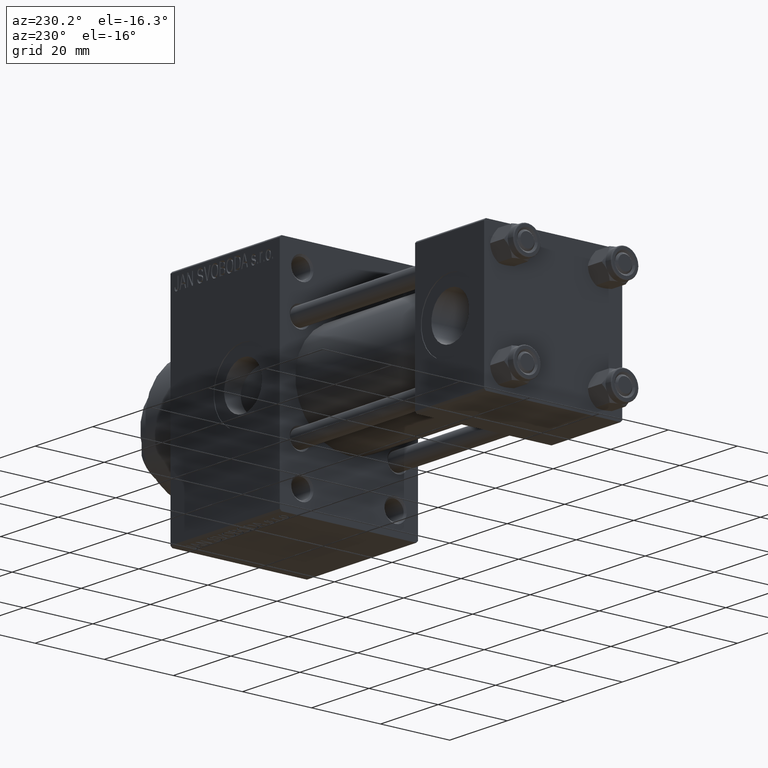
[diagram: clean part render]
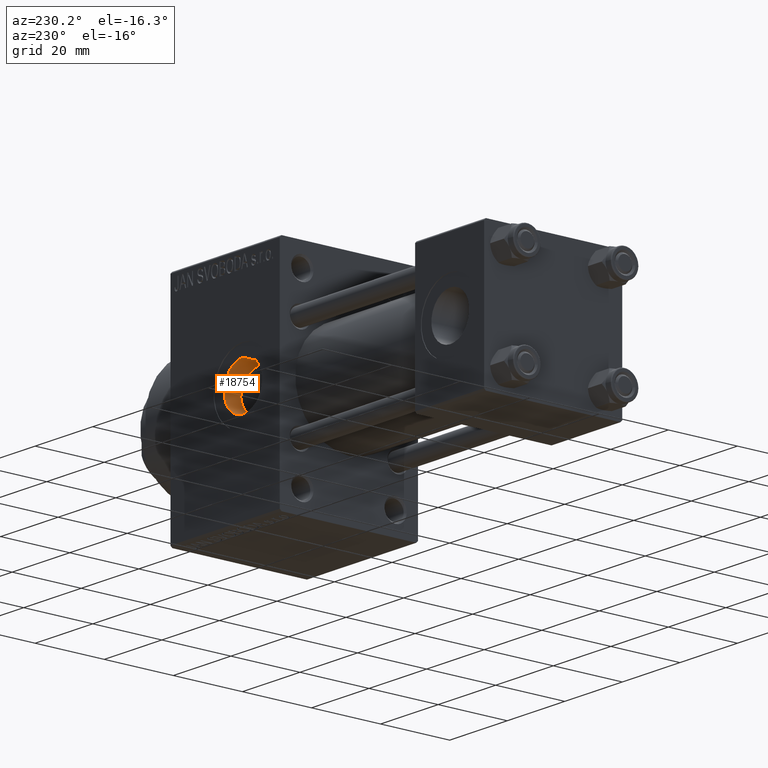
[diagram: same view with one face highlighted and labeled with its STEP entity id]
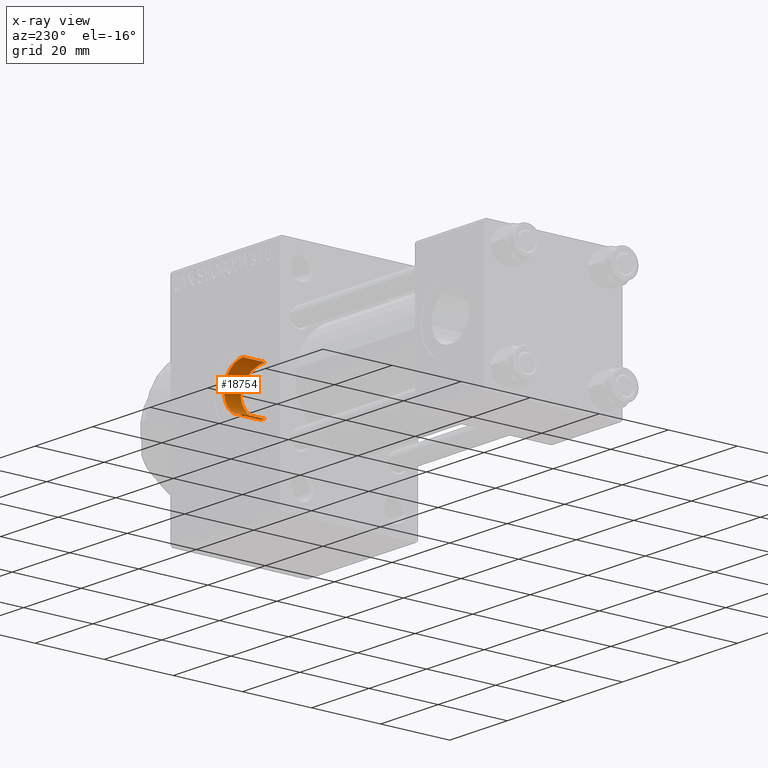
[diagram: x-ray of the same camera — body ghosted, the highlighted face saturated]
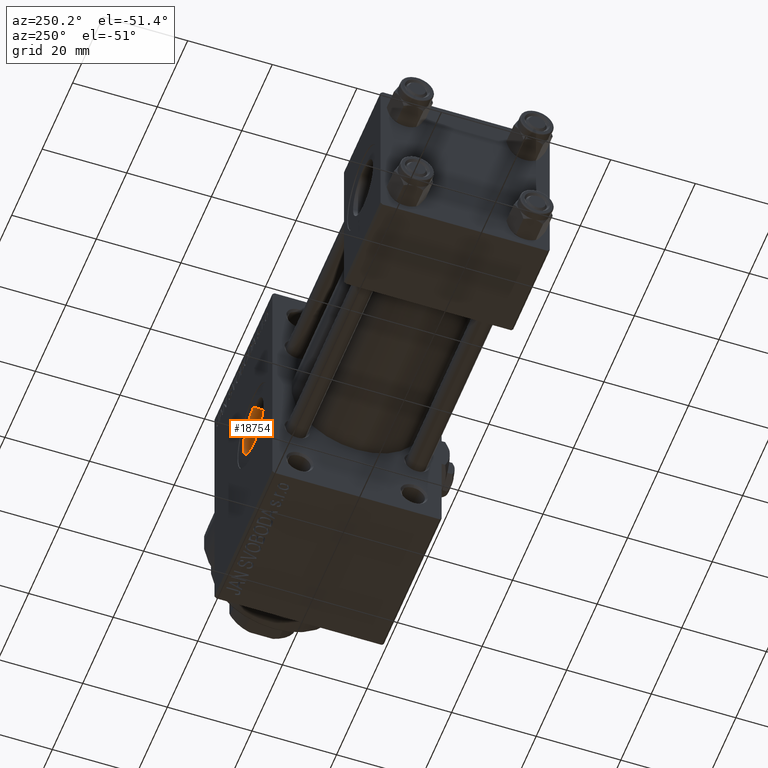
[diagram: same view with one face highlighted and labeled with its STEP entity id]
A machine part, auxiliary view. The second image highlights one B-rep face of the part: STEP entity #18754.
The next image is the same camera in x-ray: the body ghosted, the highlighted face saturated — about 0% of this face is hidden behind the body in this view.
A second angle (auxiliary view) of the same face is appended — the face is thin or edge-on in the first view.
In plain terms, the highlighted cylindrical surface (edge-blend (fillet) strip) has radius 6.58 mm, axis along (0, 1, 0).
Its self-contained STEP definition (entity closure, byte-faithful):
#14 = CARTESIAN_POINT ( 'NONE',  ( 84.00000000000000000, 13.47974777212020570, -6.580000000001541061 ) ) ;
#210 = ORIENTED_EDGE ( 'NONE', *, *, #13564, .T. ) ;
#1333 = VERTEX_POINT ( 'NONE', #23386 ) ;
#2153 = LINE ( 'NONE', #6334, #25963 ) ;
#2173 = EDGE_CURVE ( 'NONE', #26191, #11649, #6833, .T. ) ;
#2474 = DIRECTION ( 'NONE',  ( 0.000000000000000000, 0.000000000000000000, 1.000000000000000000 ) ) ;
#2483 = CARTESIAN_POINT ( 'NONE',  ( 86.14192174141415137, 13.64329079840288728, 6.236468868898946916 ) ) ;
#2724 = CARTESIAN_POINT ( 'NONE',  ( 90.56927314805744800, 14.99528481447028838, -0.4348723903636226851 ) ) ;
#2970 = CARTESIAN_POINT ( 'NONE',  ( 88.94767122397709613, 14.35626376569894980, -4.358576204425606448 ) ) ;
#3469 = CARTESIAN_POINT ( 'NONE',  ( 86.73052902550121246, 13.75215651404846895, -5.990516584932040978 ) ) ;
#3657 = CARTESIAN_POINT ( 'NONE',  ( 84.00000000000000000, -18.61105048083429736, -6.580000000001541061 ) ) ;
#3714 = CARTESIAN_POINT ( 'NONE',  ( 90.23769844280084840, 14.85224310456066199, -2.139178080577716301 ) ) ;
#5939 = CARTESIAN_POINT ( 'NONE',  ( 88.50269527074252096, 14.21118671985590609, 4.802809199701820297 ) ) ;
#6181 = CARTESIAN_POINT ( 'NONE',  ( 89.90496100315004924, 14.71561861235558055, 2.934527236680509965 ) ) ;
#6334 = CARTESIAN_POINT ( 'NONE',  ( 84.00000000000000000, -18.61105048083429736, 6.580000000001541061 ) ) ;
#6833 = CIRCLE ( 'NONE', #46175, 6.580000000001541061 ) ;
#8341 = CARTESIAN_POINT ( 'NONE',  ( 84.00000000000000000, 19.80000000000000071, 6.580000000001541061 ) ) ;
#9523 = DIRECTION ( 'NONE',  ( 0.000000000000000000, 0.000000000000000000, 1.000000000000000000 ) ) ;
#9631 = CARTESIAN_POINT ( 'NONE',  ( 84.87316574373073763, 13.50139811867472694, 6.536143893247988501 ) ) ;
#9868 = CARTESIAN_POINT ( 'NONE',  ( 89.22411835450492390, 14.45495742940372175, 4.023617649563258070 ) ) ;
#10354 = CARTESIAN_POINT ( 'NONE',  ( 90.52575784058851127, 14.97627231213753163, -0.8711763860932838499 ) ) ;
#11307 = EDGE_CURVE ( 'NONE', #17361, #11649, #18179, .T. ) ;
#11340 = CARTESIAN_POINT ( 'NONE',  ( 88.34654763100903097, 14.16034374859521350, -4.958241700615885428 ) ) ;
#11649 = VERTEX_POINT ( 'NONE', #37860 ) ;
#11719 = B_SPLINE_CURVE_WITH_KNOTS ( 'NONE', 3,
 ( #21436, #14043, #9631, #28807, #2483, #40140, #24663, #39894, #24898, #39652, #5939, #28574, #9868, #44078, #6181, #25378, #47538, #17502, #43833, #36437, #40381, #32500, #2724, #10354, #25612, #26123, #3714, #33229, #32984, #45064, #2970, #11340, #48028, #26365, #21929, #48510, #3469, #48263, #17993, #36933, #41360, #14 ),
 .UNSPECIFIED., .F., .F.,
 ( 4, 2, 2, 2, 2, 2, 2, 2, 2, 2, 2, 2, 2, 2, 2, 2, 2, 2, 2, 2, 4 ),
 ( 1.422579022190208801E-17, 0.001302447285417714182, 0.002604894570835414053, 0.003907341856253113491, 0.004558565498961946946, 0.005209789141670780402, 0.006512236427088448180, 0.007814683712506115959, 0.008465907355214958088, 0.009117130997923801952, 0.01041957828334148621, 0.01107080192605032834, 0.01172202556875917047, 0.01302447285417686340, 0.01432692013959455633, 0.01562936742501224580, 0.01693181471042993699, 0.01758303835313878086, 0.01823426199584762819, 0.01953670928126531939, 0.02083915656668300712 ),
 .UNSPECIFIED. ) ;
#12969 = CARTESIAN_POINT ( 'NONE',  ( 84.00000000000000000, -18.61105048083429736, 0.000000000000000000 ) ) ;
#13564 = EDGE_CURVE ( 'NONE', #1333, #26191, #2153, .T. ) ;
#14043 = CARTESIAN_POINT ( 'NONE',  ( 84.44091709312753835, 13.47974777212020925, 6.580000000001541949 ) ) ;
#16434 = FACE_OUTER_BOUND ( 'NONE', #37588, .T. ) ;
#17361 = VERTEX_POINT ( 'NONE', #28795 ) ;
#17502 = CARTESIAN_POINT ( 'NONE',  ( 90.35400523561561670, 14.90213545262838934, 1.723442878131194567 ) ) ;
#17993 = CARTESIAN_POINT ( 'NONE',  ( 85.72738229337633697, 13.58322368116233925, -6.364371117436304459 ) ) ;
#18179 = LINE ( 'NONE', #3657, #21957 ) ;
#18754 = ADVANCED_FACE ( 'NONE', ( #16434 ), #39767, .F. ) ;
#20622 = DIRECTION ( 'NONE',  ( -0.000000000000000000, 1.000000000000000000, -0.000000000000000000 ) ) ;
#20935 = DIRECTION ( 'NONE',  ( 0.000000000000000000, 1.000000000000000000, 0.000000000000000000 ) ) ;
#21436 = CARTESIAN_POINT ( 'NONE',  ( 84.00000000000001421, 13.47974777212020747, 6.580000000001541061 ) ) ;
#21929 = CARTESIAN_POINT ( 'NONE',  ( 87.30108931628336677, 13.87684958374441280, -5.696061878518563049 ) ) ;
#21957 = VECTOR ( 'NONE', #38095, 1000.000000000000000 ) ;
#23386 = CARTESIAN_POINT ( 'NONE',  ( 84.00000000000001421, 13.47974777212020747, 6.580000000001541061 ) ) ;
#24359 = ORIENTED_EDGE ( 'NONE', *, *, #2173, .T. ) ;
#24630 = AXIS2_PLACEMENT_3D ( 'NONE', #12969, #43244, #9523 ) ;
#24663 = CARTESIAN_POINT ( 'NONE',  ( 87.31096684123954788, 13.87618552960360319, 5.702370364628353450 ) ) ;
#24898 = CARTESIAN_POINT ( 'NONE',  ( 88.01682385340173198, 14.06462955860938990, 5.216021925338526266 ) ) ;
#25378 = CARTESIAN_POINT ( 'NONE',  ( 90.15299919069009604, 14.81746657544780987, 2.341560291187981591 ) ) ;
#25612 = CARTESIAN_POINT ( 'NONE',  ( 90.49330976722114883, 14.96212495205842785, -1.086408634742738633 ) ) ;
#25963 = VECTOR ( 'NONE', #20622, 1000.000000000000000 ) ;
#26123 = CARTESIAN_POINT ( 'NONE',  ( 90.36499013257748913, 14.90673487989735158, -1.723694413480210130 ) ) ;
#26191 = VERTEX_POINT ( 'NONE', #8341 ) ;
#26365 = CARTESIAN_POINT ( 'NONE',  ( 87.48650847152742926, 13.92228281461338746, -5.584478018864869497 ) ) ;
#28574 = CARTESIAN_POINT ( 'NONE',  ( 88.95193023626919171, 14.35775282579782619, 4.353636477095024659 ) ) ;
#28795 = CARTESIAN_POINT ( 'NONE',  ( 84.00000000000000000, 13.47974777212020570, -6.580000000001541061 ) ) ;
#28807 = CARTESIAN_POINT ( 'NONE',  ( 85.72150176663824084, 13.58266914400359404, 6.365534311959137881 ) ) ;
#32010 = CARTESIAN_POINT ( 'NONE',  ( 84.00000000000000000, 19.80000000000000071, 0.000000000000000000 ) ) ;
#32500 = CARTESIAN_POINT ( 'NONE',  ( 90.58012121813143835, 15.00005317434620622, -0.2142933741436109929 ) ) ;
#32984 = CARTESIAN_POINT ( 'NONE',  ( 89.69892933739788532, 14.63327528768209262, -3.316712846528059977 ) ) ;
#33229 = CARTESIAN_POINT ( 'NONE',  ( 89.90247971339006483, 14.71460193619355294, -2.940356773720275818 ) ) ;
#36437 = CARTESIAN_POINT ( 'NONE',  ( 90.53660967087691347, 14.98081735429026473, 0.8707480482464713401 ) ) ;
#36914 = EDGE_CURVE ( 'NONE', #1333, #17361, #11719, .T. ) ;
#36933 = CARTESIAN_POINT ( 'NONE',  ( 84.86672476049650982, 13.50078989524231510, -6.537419788989380365 ) ) ;
#37588 = EDGE_LOOP ( 'NONE', ( #42966, #44784, #210, #24359 ) ) ;
#37860 = CARTESIAN_POINT ( 'NONE',  ( 84.00000000000000000, 19.80000000000000071, -6.580000000001541061 ) ) ;
#38095 = DIRECTION ( 'NONE',  ( -0.000000000000000000, 1.000000000000000000, -0.000000000000000000 ) ) ;
#39652 = CARTESIAN_POINT ( 'NONE',  ( 88.34571810031602013, 14.16206893639012421, 4.945350623308212512 ) ) ;
#39767 = CYLINDRICAL_SURFACE ( 'NONE', #24630, 6.580000000001541061 ) ;
#39894 = CARTESIAN_POINT ( 'NONE',  ( 87.84399376657984249, 14.01607983476613484, 5.344707122219622519 ) ) ;
#40140 = CARTESIAN_POINT ( 'NONE',  ( 86.93549082565270680, 13.79016538881725396, 5.904597049045542612 ) ) ;
#40381 = CARTESIAN_POINT ( 'NONE',  ( 90.57975445926895475, 14.99989228947896258, 0.4396576369082871860 ) ) ;
#41360 = CARTESIAN_POINT ( 'NONE',  ( 84.43405175477785463, 13.47974777212021280, -6.580000000001541949 ) ) ;
#42966 = ORIENTED_EDGE ( 'NONE', *, *, #11307, .F. ) ;
#43244 = DIRECTION ( 'NONE',  ( -0.000000000000000000, 1.000000000000000000, -0.000000000000000000 ) ) ;
#43833 = CARTESIAN_POINT ( 'NONE',  ( 90.40804349032906373, 14.92531832247587431, 1.510180672733651086 ) ) ;
#44078 = CARTESIAN_POINT ( 'NONE',  ( 89.70288243394014671, 14.63479585642867598, 3.310293569520521562 ) ) ;
#44784 = ORIENTED_EDGE ( 'NONE', *, *, #36914, .F. ) ;
#45064 = CARTESIAN_POINT ( 'NONE',  ( 89.22296890531409019, 14.45456171034981629, -4.024795089579184193 ) ) ;
#46175 = AXIS2_PLACEMENT_3D ( 'NONE', #32010, #20935, #2474 ) ;
#47538 = CARTESIAN_POINT ( 'NONE',  ( 90.22642608447620205, 14.84818643133560201, 2.138984829999148296 ) ) ;
#48028 = CARTESIAN_POINT ( 'NONE',  ( 88.01940850816879447, 14.06206651057332024, -5.227207620256651310 ) ) ;
#48263 = CARTESIAN_POINT ( 'NONE',  ( 86.13878146178018369, 13.64286136601995914, -6.237365205957289049 ) ) ;
#48510 = CARTESIAN_POINT ( 'NONE',  ( 86.92351769146507934, 13.79190775013002401, -5.898758844509866428 ) ) ;